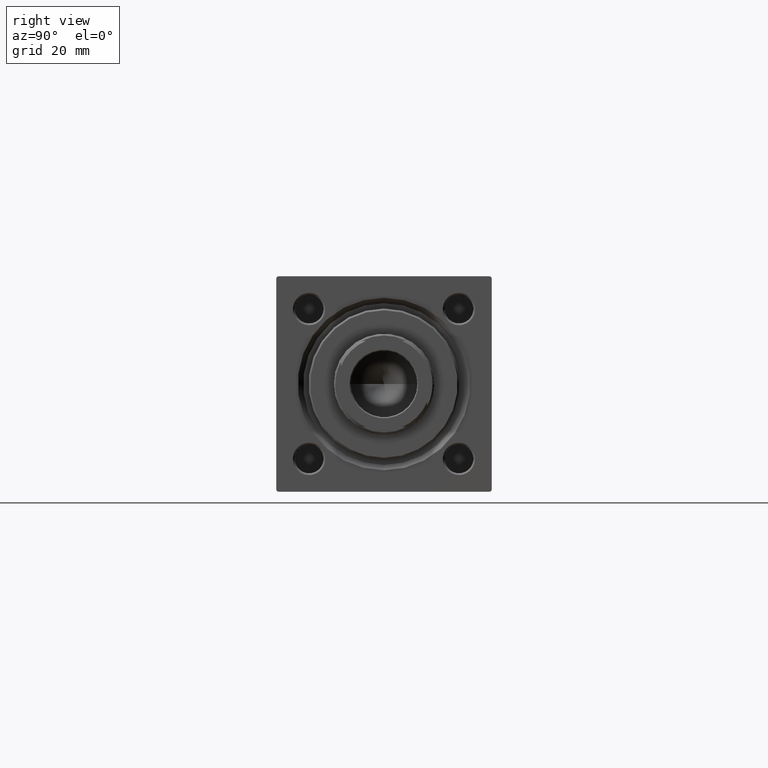
[diagram: clean part render]
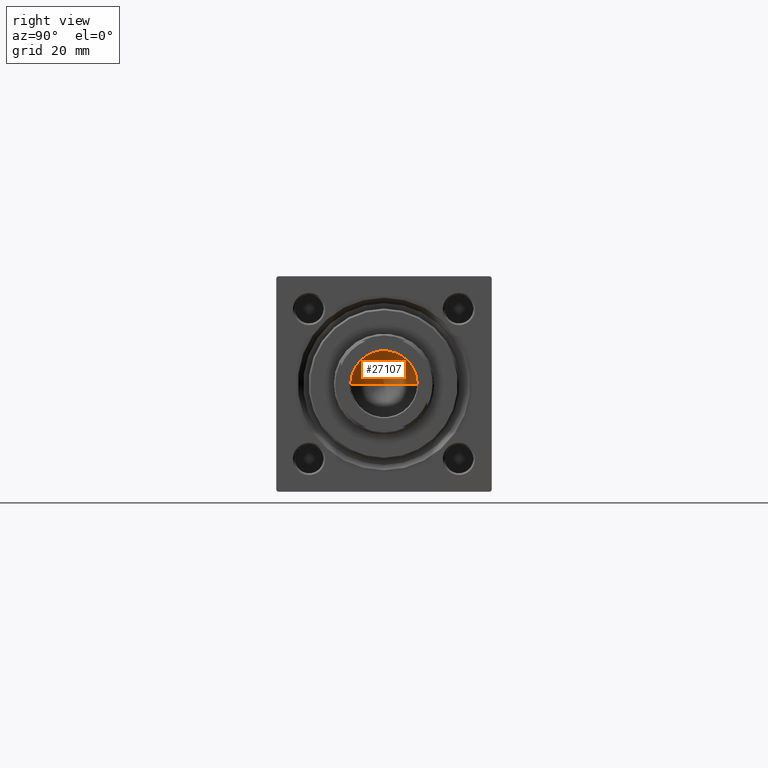
[diagram: same view with one face highlighted and labeled with its STEP entity id]
A machine part, right view. The second image highlights one B-rep face of the part: STEP entity #27107.
In plain terms, the highlighted conical surface has half-angle 59 deg.
Its self-contained STEP definition (entity closure, byte-faithful):
#422 = VECTOR ( 'NONE', #4885, 1000.000000000000000 ) ;
#1906 = CARTESIAN_POINT ( 'NONE',  ( -9.249999999999992895, 1.132798289211300712E-15, 101.0000000000000000 ) ) ;
#4885 = DIRECTION ( 'NONE',  ( 0.8571673007021117785, 0.000000000000000000, 0.5150380749100550437 ) ) ;
#4942 = LINE ( 'NONE', #1906, #21150 ) ;
#9422 = CARTESIAN_POINT ( 'NONE',  ( 0.000000000000000000, 0.000000000000000000, 101.0000000000000000 ) ) ;
#9671 = DIRECTION ( 'NONE',  ( -0.000000000000000000, -0.000000000000000000, 1.000000000000000000 ) ) ;
#9930 = EDGE_LOOP ( 'NONE', ( #14214, #28684, #45515 ) ) ;
#11050 = CARTESIAN_POINT ( 'NONE',  ( -9.249999999999992895, 1.132798289211300712E-15, 101.0000000000000000 ) ) ;
#11066 = CARTESIAN_POINT ( 'NONE',  ( 0.000000000000000000, 0.000000000000000000, 101.0000000000000000 ) ) ;
#11299 = FACE_OUTER_BOUND ( 'NONE', #9930, .T. ) ;
#11741 = VERTEX_POINT ( 'NONE', #30902 ) ;
#11984 = CARTESIAN_POINT ( 'NONE',  ( -9.769621978240258809E-15, 0.000000000000000000, 95.44203927399506426 ) ) ;
#12280 = AXIS2_PLACEMENT_3D ( 'NONE', #11066, #26783, #38210 ) ;
#14214 = ORIENTED_EDGE ( 'NONE', *, *, #44039, .F. ) ;
#16068 = LINE ( 'NONE', #28246, #422 ) ;
#18110 = EDGE_CURVE ( 'NONE', #19734, #11741, #23199, .T. ) ;
#19734 = VERTEX_POINT ( 'NONE', #11050 ) ;
#21150 = VECTOR ( 'NONE', #32890, 1000.000000000000000 ) ;
#22568 = VERTEX_POINT ( 'NONE', #11984 ) ;
#23199 = CIRCLE ( 'NONE', #28869, 9.249999999999992895 ) ;
#24296 = EDGE_CURVE ( 'NONE', #22568, #19734, #4942, .T. ) ;
#25155 = DIRECTION ( 'NONE',  ( 1.000000000000000000, 0.000000000000000000, 0.000000000000000000 ) ) ;
#26783 = DIRECTION ( 'NONE',  ( -0.000000000000000000, -0.000000000000000000, 1.000000000000000000 ) ) ;
#27107 = ADVANCED_FACE ( 'NONE', ( #11299 ), #49593, .F. ) ;
#28246 = CARTESIAN_POINT ( 'NONE',  ( 9.249999999999992895, 0.000000000000000000, 101.0000000000000000 ) ) ;
#28684 = ORIENTED_EDGE ( 'NONE', *, *, #24296, .T. ) ;
#28869 = AXIS2_PLACEMENT_3D ( 'NONE', #9422, #9671, #25155 ) ;
#30902 = CARTESIAN_POINT ( 'NONE',  ( 9.249999999999992895, 0.000000000000000000, 101.0000000000000000 ) ) ;
#32890 = DIRECTION ( 'NONE',  ( -0.8571673007021117785, 1.049727191138617956E-16, 0.5150380749100550437 ) ) ;
#38210 = DIRECTION ( 'NONE',  ( 1.000000000000000000, 0.000000000000000000, 0.000000000000000000 ) ) ;
#44039 = EDGE_CURVE ( 'NONE', #22568, #11741, #16068, .T. ) ;
#45515 = ORIENTED_EDGE ( 'NONE', *, *, #18110, .T. ) ;
#49593 = CONICAL_SURFACE ( 'NONE', #12280, 9.249999999999992895, 1.029744258676653423 ) ;